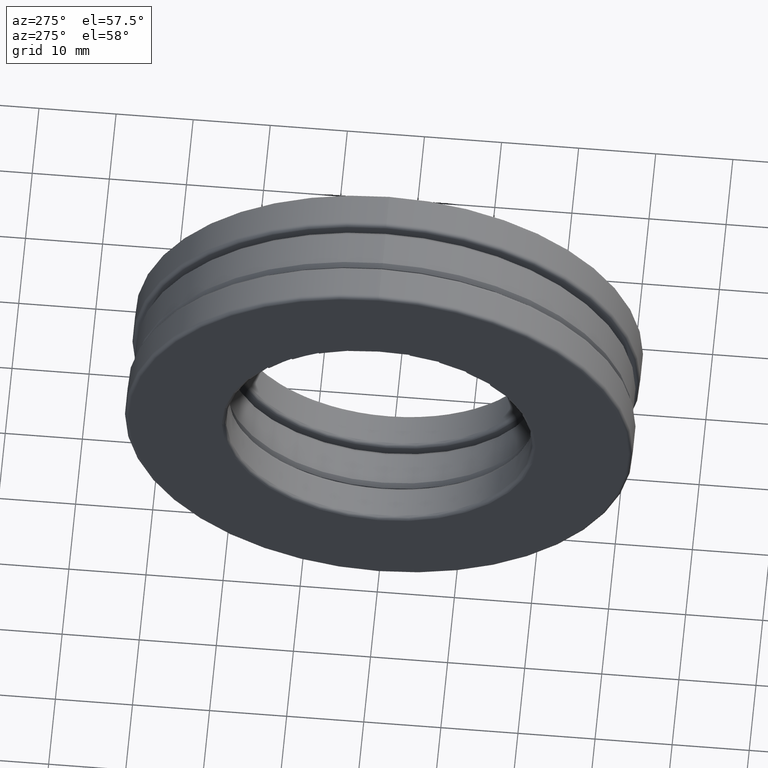
[diagram: clean part render]
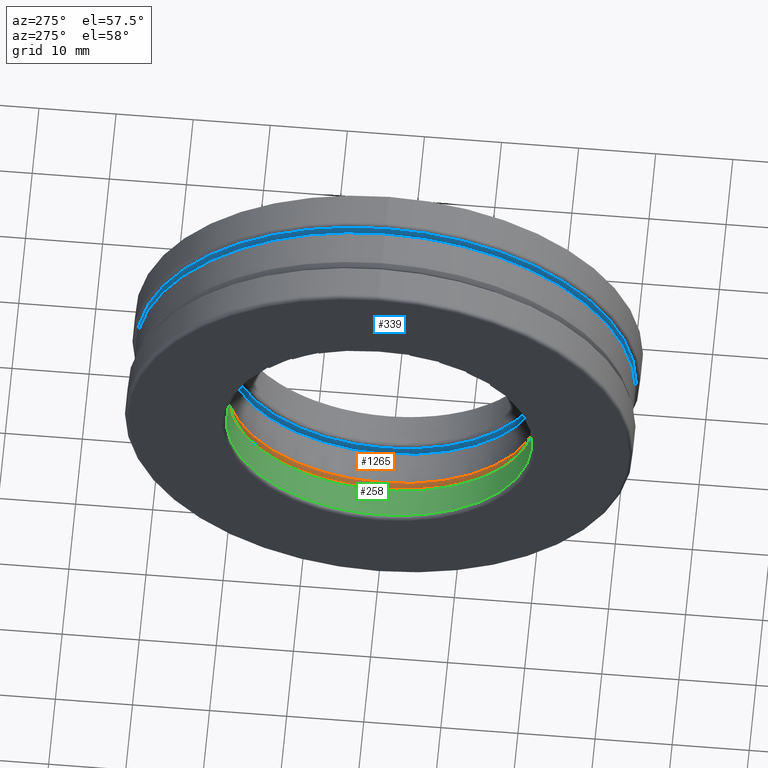
[diagram: same view with three faces highlighted in distinct colors, each labeled with its STEP entity id]
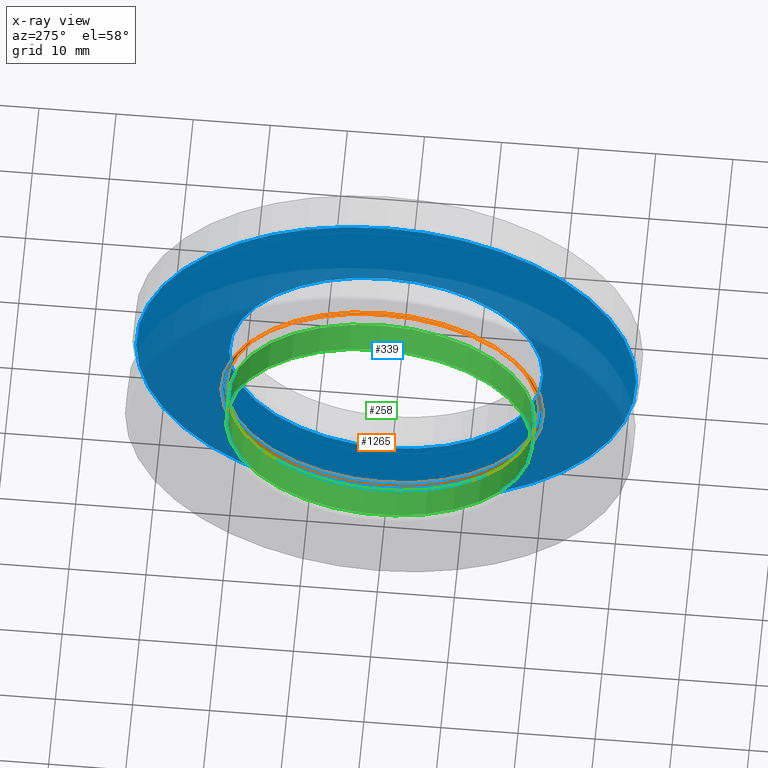
[diagram: x-ray of the same camera — body ghosted, the three highlighted faces saturated]
A machine part, auxiliary view with three faces highlighted in distinct colors.
The next image is the same camera in x-ray (body ghosted, the three faces saturated) — at least one of them is partly hidden behind the body in this view.
Their STEP definitions:

[orange] entity #1265 — the highlighted conical surface has half-angle 45 deg.
#109 = ORIENTED_EDGE ( 'NONE', *, *, #1354, .T. ) ;
#122 = DIRECTION ( 'NONE',  ( 0.0000000000000000000, 0.0000000000000000000, 1.000000000000000000 ) ) ;
#200 = CIRCLE ( 'NONE', #397, 0.8212500000000001500 ) ;
#266 = VERTEX_POINT ( 'NONE', #968 ) ;
#281 = CARTESIAN_POINT ( 'NONE',  ( -0.08499999999999990900, 0.0000000000000000000, 0.0000000000000000000 ) ) ;
#287 = AXIS2_PLACEMENT_3D ( 'NONE', #281, #1196, #858 ) ;
#397 = AXIS2_PLACEMENT_3D ( 'NONE', #516, #1185, #513 ) ;
#487 = ORIENTED_EDGE ( 'NONE', *, *, #1122, .F. ) ;
#513 = DIRECTION ( 'NONE',  ( 0.0000000000000000000, 0.0000000000000000000, 1.000000000000000000 ) ) ;
#516 = CARTESIAN_POINT ( 'NONE',  ( -0.1049999999999999300, 0.0000000000000000000, 0.0000000000000000000 ) ) ;
#545 = CONICAL_SURFACE ( 'NONE', #1025, 0.8212500000000001500, 0.7853981633974496100 ) ;
#704 = CARTESIAN_POINT ( 'NONE',  ( -0.1049999999999999300, 0.0000000000000000000, 0.0000000000000000000 ) ) ;
#779 = FACE_OUTER_BOUND ( 'NONE', #1446, .T. ) ;
#804 = DIRECTION ( 'NONE',  ( -1.000000000000000000, -0.0000000000000000000, -0.0000000000000000000 ) ) ;
#858 = DIRECTION ( 'NONE',  ( 0.0000000000000000000, 0.0000000000000000000, 1.000000000000000000 ) ) ;
#874 = CARTESIAN_POINT ( 'NONE',  ( -0.08499999999999990900, 0.0000000000000000000, 0.8012500000000001300 ) ) ;
#968 = CARTESIAN_POINT ( 'NONE',  ( -0.1049999999999999300, 0.0000000000000000000, 0.8212500000000001500 ) ) ;
#1001 = CIRCLE ( 'NONE', #287, 0.8012500000000001300 ) ;
#1025 = AXIS2_PLACEMENT_3D ( 'NONE', #704, #804, #122 ) ;
#1030 = EDGE_LOOP ( 'NONE', ( #487 ) ) ;
#1122 = EDGE_CURVE ( 'NONE', #1434, #1434, #1001, .T. ) ;
#1185 = DIRECTION ( 'NONE',  ( -1.000000000000000000, -0.0000000000000000000, -0.0000000000000000000 ) ) ;
#1196 = DIRECTION ( 'NONE',  ( -1.000000000000000000, -0.0000000000000000000, -0.0000000000000000000 ) ) ;
#1265 = ADVANCED_FACE ( 'NONE', ( #1370, #779 ), #545, .F. ) ;
#1354 = EDGE_CURVE ( 'NONE', #266, #266, #200, .T. ) ;
#1370 = FACE_BOUND ( 'NONE', #1030, .T. ) ;
#1434 = VERTEX_POINT ( 'NONE', #874 ) ;
#1446 = EDGE_LOOP ( 'NONE', ( #109 ) ) ;

[blue] entity #339 — the highlighted planar face has unit normal (1, 0, 0).
#34 = ORIENTED_EDGE ( 'NONE', *, *, #465, .F. ) ;
#49 = DIRECTION ( 'NONE',  ( -1.000000000000000000, -0.0000000000000000000, -0.0000000000000000000 ) ) ;
#108 = CIRCLE ( 'NONE', #1356, 0.8012500000000001300 ) ;
#221 = DIRECTION ( 'NONE',  ( -1.000000000000000000, -0.0000000000000000000, -0.0000000000000000000 ) ) ;
#237 = CIRCLE ( 'NONE', #529, 1.276874999999999800 ) ;
#300 = ORIENTED_EDGE ( 'NONE', *, *, #765, .T. ) ;
#339 = ADVANCED_FACE ( 'NONE', ( #1334, #1261 ), #657, .F. ) ;
#349 = DIRECTION ( 'NONE',  ( 0.0000000000000000000, 0.0000000000000000000, 1.000000000000000000 ) ) ;
#465 = EDGE_CURVE ( 'NONE', #743, #743, #108, .T. ) ;
#529 = AXIS2_PLACEMENT_3D ( 'NONE', #736, #49, #730 ) ;
#579 = CARTESIAN_POINT ( 'NONE',  ( 0.1250000000000000000, 0.0000000000000000000, 1.276874999999999800 ) ) ;
#657 = PLANE ( 'NONE',  #899 ) ;
#730 = DIRECTION ( 'NONE',  ( 0.0000000000000000000, 0.0000000000000000000, 1.000000000000000000 ) ) ;
#736 = CARTESIAN_POINT ( 'NONE',  ( 0.1250000000000000000, 0.0000000000000000000, 0.0000000000000000000 ) ) ;
#743 = VERTEX_POINT ( 'NONE', #1059 ) ;
#746 = EDGE_LOOP ( 'NONE', ( #300 ) ) ;
#765 = EDGE_CURVE ( 'NONE', #946, #946, #237, .T. ) ;
#774 = EDGE_LOOP ( 'NONE', ( #34 ) ) ;
#792 = CARTESIAN_POINT ( 'NONE',  ( 0.1250000000000000000, 0.0000000000000000000, 0.0000000000000000000 ) ) ;
#873 = DIRECTION ( 'NONE',  ( 0.0000000000000000000, 0.0000000000000000000, -1.000000000000000000 ) ) ;
#899 = AXIS2_PLACEMENT_3D ( 'NONE', #1335, #1089, #873 ) ;
#946 = VERTEX_POINT ( 'NONE', #579 ) ;
#1059 = CARTESIAN_POINT ( 'NONE',  ( 0.1250000000000000000, 0.0000000000000000000, 0.8012500000000001300 ) ) ;
#1089 = DIRECTION ( 'NONE',  ( 1.000000000000000000, 0.0000000000000000000, 0.0000000000000000000 ) ) ;
#1261 = FACE_OUTER_BOUND ( 'NONE', #746, .T. ) ;
#1334 = FACE_BOUND ( 'NONE', #774, .T. ) ;
#1335 = CARTESIAN_POINT ( 'NONE',  ( 0.1250000000000000000, 0.0000000000000000000, 0.0000000000000000000 ) ) ;
#1356 = AXIS2_PLACEMENT_3D ( 'NONE', #792, #221, #349 ) ;

[green] entity #258 — the highlighted cylindrical surface (bore or boss wall) has radius 19.8438 mm, axis along (-1, -0, -0).
#67 = DIRECTION ( 'NONE',  ( 0.0000000000000000000, 0.0000000000000000000, 1.000000000000000000 ) ) ;
#183 = DIRECTION ( 'NONE',  ( -1.000000000000000000, -0.0000000000000000000, -0.0000000000000000000 ) ) ;
#189 = CARTESIAN_POINT ( 'NONE',  ( -0.2925000000000000400, 0.0000000000000000000, 0.0000000000000000000 ) ) ;
#190 = FACE_OUTER_BOUND ( 'NONE', #973, .T. ) ;
#258 = ADVANCED_FACE ( 'NONE', ( #803, #190 ), #1096, .F. ) ;
#396 = EDGE_LOOP ( 'NONE', ( #1428 ) ) ;
#401 = VERTEX_POINT ( 'NONE', #1392 ) ;
#414 = CARTESIAN_POINT ( 'NONE',  ( 0.0000000000000000000, 0.0000000000000000000, 0.0000000000000000000 ) ) ;
#508 = DIRECTION ( 'NONE',  ( -1.000000000000000000, -0.0000000000000000000, -0.0000000000000000000 ) ) ;
#548 = CIRCLE ( 'NONE', #768, 0.7812500000000000000 ) ;
#615 = AXIS2_PLACEMENT_3D ( 'NONE', #414, #508, #854 ) ;
#768 = AXIS2_PLACEMENT_3D ( 'NONE', #189, #966, #1323 ) ;
#803 = FACE_OUTER_BOUND ( 'NONE', #396, .T. ) ;
#854 = DIRECTION ( 'NONE',  ( 0.0000000000000000000, 0.0000000000000000000, 1.000000000000000000 ) ) ;
#966 = DIRECTION ( 'NONE',  ( -1.000000000000000000, -0.0000000000000000000, -0.0000000000000000000 ) ) ;
#973 = EDGE_LOOP ( 'NONE', ( #1287 ) ) ;
#1071 = CIRCLE ( 'NONE', #1366, 0.7812500000000000000 ) ;
#1076 = EDGE_CURVE ( 'NONE', #401, #401, #548, .T. ) ;
#1084 = CARTESIAN_POINT ( 'NONE',  ( -0.1450000000000000500, 0.0000000000000000000, 0.7812500000000000000 ) ) ;
#1085 = VERTEX_POINT ( 'NONE', #1084 ) ;
#1096 = CYLINDRICAL_SURFACE ( 'NONE', #615, 0.7812500000000000000 ) ;
#1207 = EDGE_CURVE ( 'NONE', #1085, #1085, #1071, .T. ) ;
#1287 = ORIENTED_EDGE ( 'NONE', *, *, #1207, .F. ) ;
#1323 = DIRECTION ( 'NONE',  ( 0.0000000000000000000, 0.0000000000000000000, 1.000000000000000000 ) ) ;
#1366 = AXIS2_PLACEMENT_3D ( 'NONE', #1420, #183, #67 ) ;
#1392 = CARTESIAN_POINT ( 'NONE',  ( -0.2925000000000000400, 0.0000000000000000000, 0.7812500000000000000 ) ) ;
#1420 = CARTESIAN_POINT ( 'NONE',  ( -0.1450000000000000500, 0.0000000000000000000, 0.0000000000000000000 ) ) ;
#1428 = ORIENTED_EDGE ( 'NONE', *, *, #1076, .T. ) ;